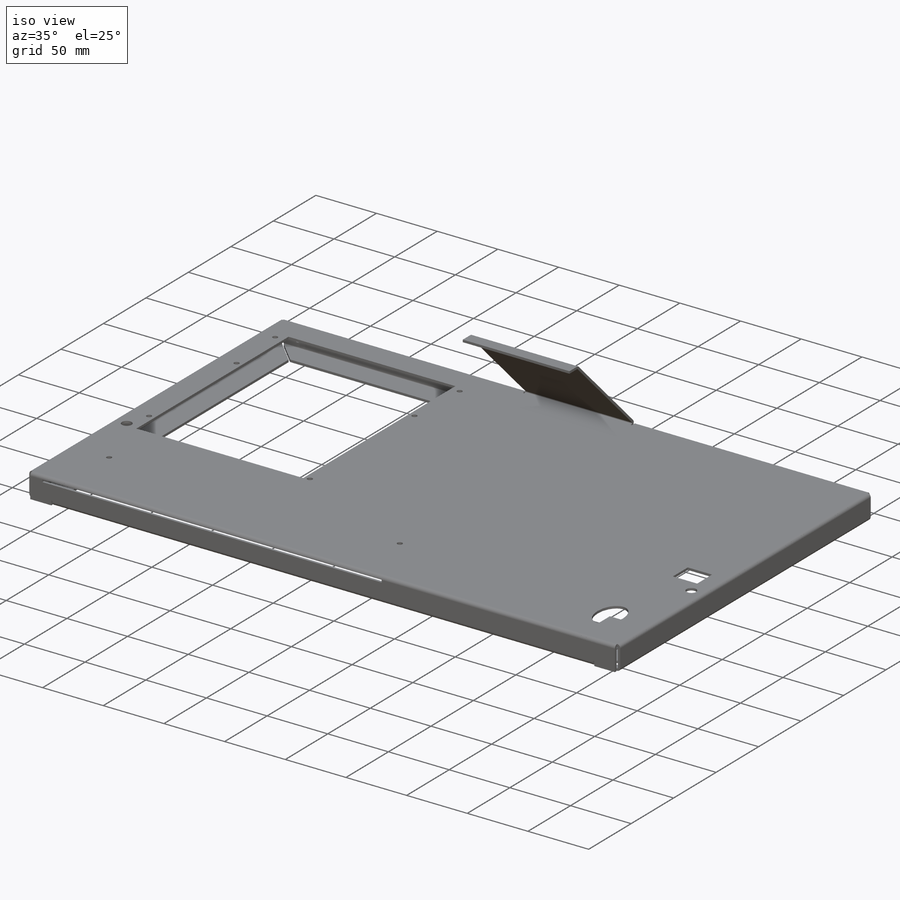
[diagram: iso view]
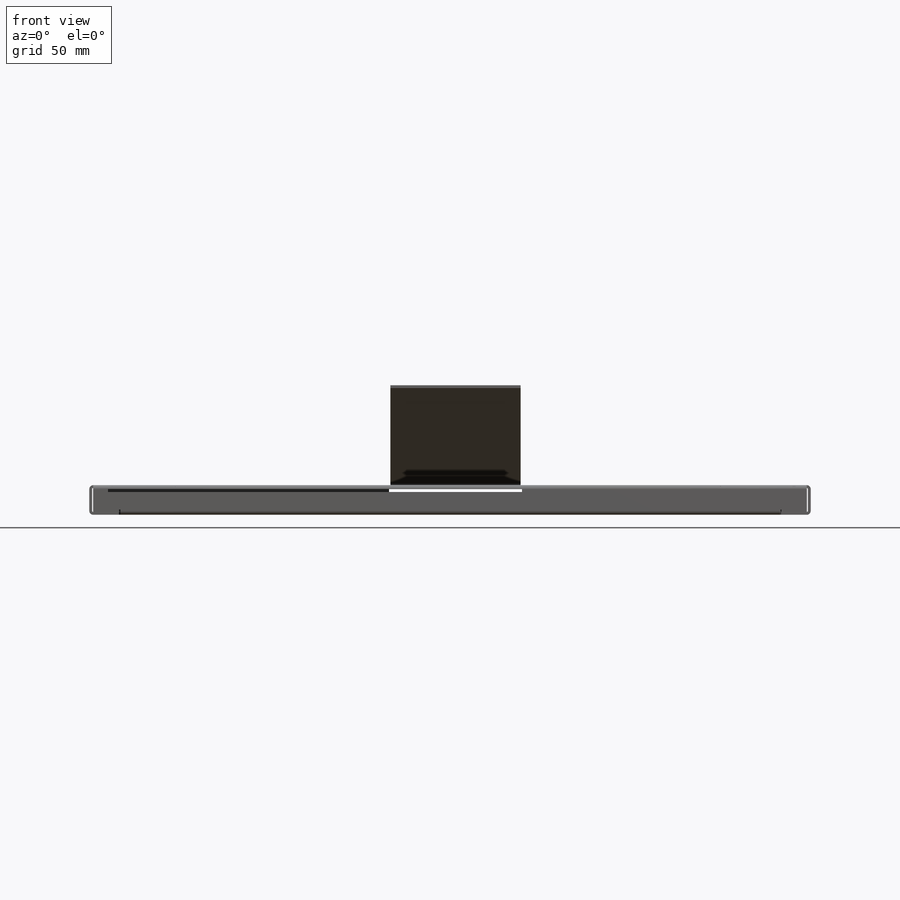
[diagram: front view]
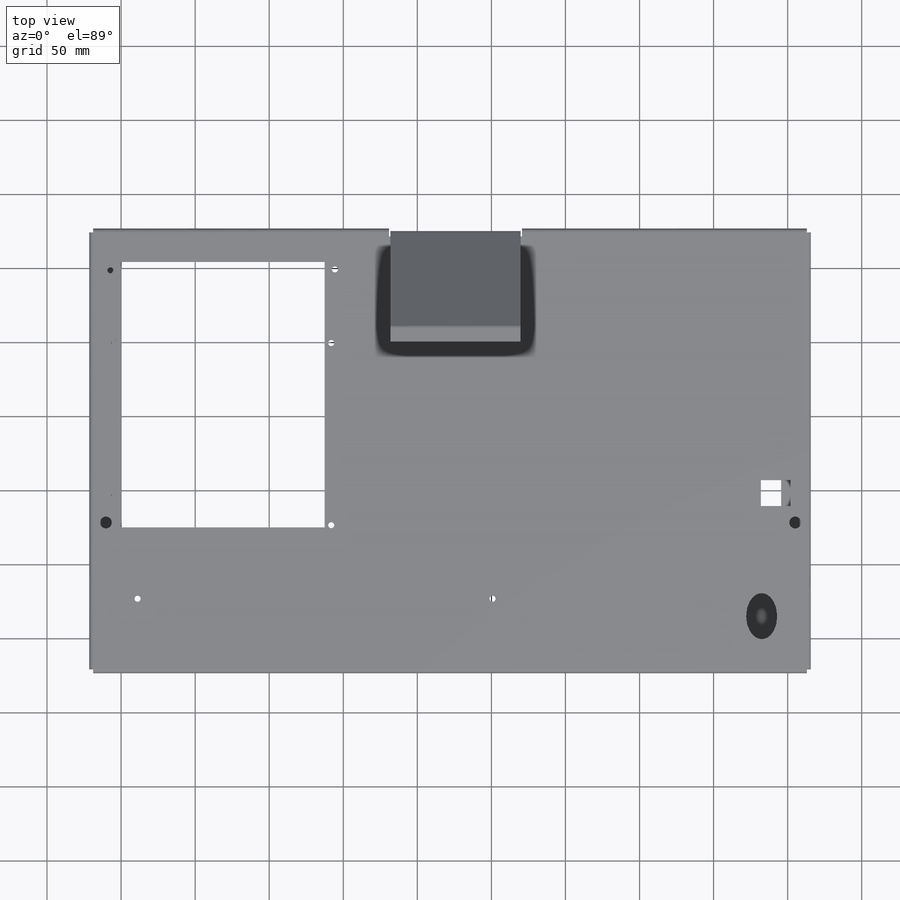
[diagram: top view]
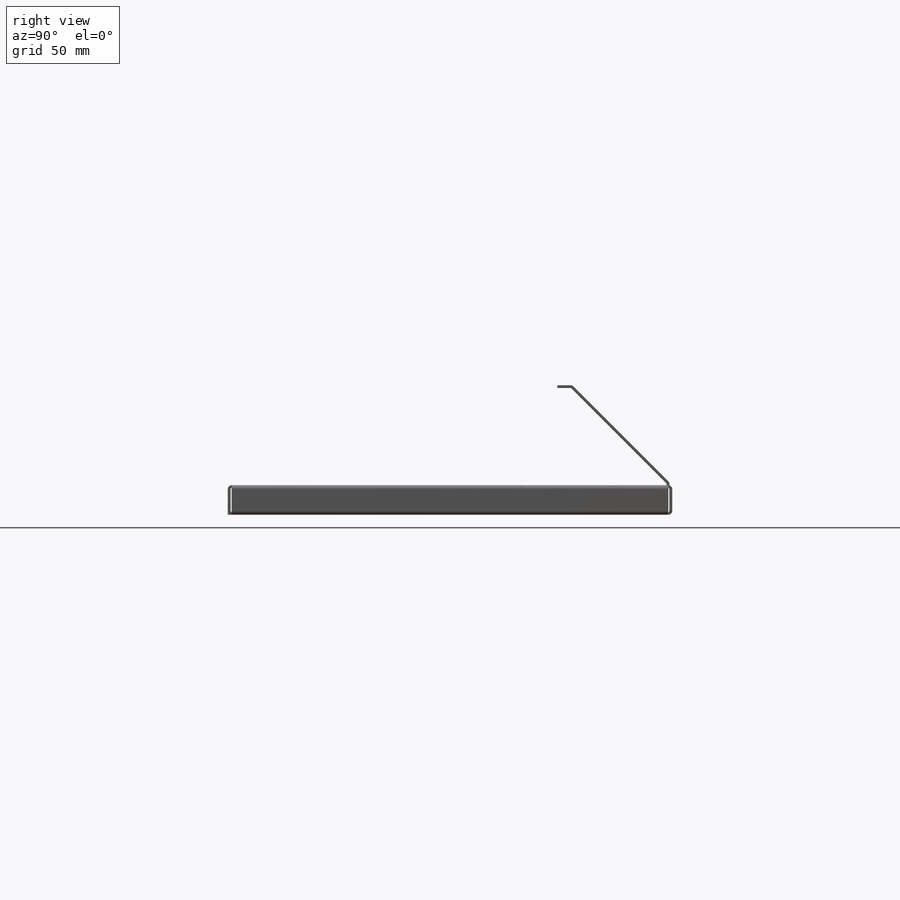
[diagram: right view]
SOLIDWORKS PART (.sldprt)
format: sldprt  version: not decoded by parser v0  size: 1,553,408 bytes
history: native  units: mm
features: sketch x61, sheet_metal_op x29, cut_extrude x11, material x1 + 17 further entries (+13 scaffold rows collapsed; 17 parser-record rows omitted)
feature tree (149):
  scaffold x13  (default folders/planes/origin — collapsed)
  material  "Material <not specified>"
  sketch  "Sketch1"  dims[c1.D1=300.0mm c1.D2=487.0mm c2.D1=1.27mm c2.D2=0.5 c2.D3=0.0mm c2.D6=500.0mm]
  sheet_metal_op  "Base-Flange1"
  sketch  "Sketch5"  dims[c1.D1=0.7366mm c1.D4=135.0deg c1.D5=1.0 c1.D8=~0.94869mm c1.D9=~0.94869mm c2.D1=0.7366mm c2.D2=500.0mm c2.D3=0.0mm c2.D6=10.0mm c2.D7=100.0mm c2.Edge-Flange2=0.0]
  sketch  "Sketch8"
  sheet_metal_op  "EdgeBend2"  Edge-Flange3=0
  sketch  "Sketch20"
  sketch  "Sketch21"
  sketch  "Sketch22"
  sketch  "Sketch23"
  sketch  "Sketch44"
  sheet_metal_op  "EdgeBend4"
  sheet_metal_op  "EdgeBend5"
  sheet_metal_op  "EdgeBend6"
  sheet_metal_op  "EdgeBend7"
  sheet_metal_op  "EdgeBend14"
  sketch  "Sketch45"  dims[D1=21.0mm D2=31.0mm D3=20.0mm D4=20.0mm]
  cut_extrude  "Cut-Extrude2"  Depth=10mm Edge-Flange4=0
  sketch  "Sketch56"
  sketch  "Sketch57"
  sketch  "Sketch58"
  sketch  "Sketch59"
  sheet_metal_op  "EdgeBend15"
  sheet_metal_op  "EdgeBend16"
  sheet_metal_op  "EdgeBend17"
  sheet_metal_op  "EdgeBend18"  Edge-Flange5=0
  sketch  "Sketch62"
  sheet_metal_op  "EdgeBend19"
  sketch  "Sketch63"  dims[D1=17.5mm D2=20.0mm D3=11.0mm D4=110.0mm]
  cut_extrude  "Cut-Extrude3"  Depth=10mm
  sketch  "Sketch64"  dims[D1=1.5mm 12=13.5mm D2=14.0mm D3=92.0mm D4=92.0mm D5=2.0mm D6=13.5mm D7=14.0mm]
  sketch  "Sketch68"  dims[D1=137.57mm D2=20.0mm]
  cut_extrude  "Cut-Extrude8"  Depth=20mm
  sketch  "Sketch69"  dims[c1.D1=~4.518431mm c1.D6=5.0mm c1.D3=4.08mm c1.D4=4.08mm c2.D1=7.0mm c2.D2=7.0mm c2.D3=5.0mm c2.D4=5.0mm c2.D5=5.0mm c2.D6=8.0mm c3.D5=5.0mm]
  cut_extrude  "Cut-Extrude9"  Depth=10mm
  sketch  "Sketch70"
  sketch  "Sketch71"  dims[D1=2.0mm D2=10.0mm D3=45.0mm]
  cut_extrude  "Cut-Extrude11"  Depth=10mm
  cut_extrude  "Cut-Extrude10"  Depth=10mm
  sketch  "Sketch72"  dims[D1=4.08mm D2=50.0mm D3=20.0mm D4=20.0mm]
  cut_extrude  "Cut-Extrude12"  Depth=10mm
  sketch  "Sketch73"  dims[D1=7.0mm]
  cut_extrude  "Cut-Extrude13"  Depth=15mm
  sketch  "Sketch74"  dims[D1=~3.047318mm]
  cut_extrude  "Cut-Extrude14"  Depth=10mm
  sketch  "Sketch75"  dims[D1=4.08mm]
  cut_extrude  "Cut-Extrude15"  Depth=10mm
  sketch  "Sketch76"  dims[D1=5.0mm]
  cut_extrude  "Cut-Extrude16"  Depth=10mm
  sketch  "Bend-Lines1"
  sketch  "Bounding-Box1"
  sheet_metal_op  "Sheet-Metal1"
  "Flat-Pattern1"
  sketch  "Bend-Lines2"
  sketch  "Bounding-Box2"
  parser-record x17  (decoder bookkeeping rows leaked as tree rows — omitted from the tree; the rows remain in map.json)
  sheet_metal_op  "Sheet-Metal5"
  "Flat-Pattern1"
  sketch  "Bend-Lines2"
  sketch  "Bounding-Box2"
  sheet_metal_op  "Sheet-Metal6"
  "Flat-Pattern1"
  sketch  "Bend-Lines2"
  sketch  "Bounding-Box2"
  sheet_metal_op  "Sheet-Metal7"
  "Flat-Pattern1"
  sketch  "Bend-Lines2"
  sketch  "Bounding-Box2"
  sheet_metal_op  "Sheet-Metal11"
  "Flat-Pattern1"
  sketch  "Bend-Lines2"
  sketch  "Bounding-Box2"
  sheet_metal_op  "Sheet-Metal12"
  "Flat-Pattern1"
  sketch  "Bend-Lines2"
  sketch  "Bounding-Box2"
  sheet_metal_op  "Sheet-Metal13"
  "Flat-Pattern1"
  sketch  "Bend-Lines2"
  sketch  "Bounding-Box2"
  sheet_metal_op  "Sheet-Metal14"
  "Flat-Pattern1"
  sketch  "Bend-Lines2"
  sketch  "Bounding-Box2"
  sheet_metal_op  "Sheet-Metal17"
  "Flat-Pattern1"
  sketch  "Bend-Lines2"
  sketch  "Bounding-Box2"
  sheet_metal_op  "Sheet-Metal18"
  "Flat-Pattern1"
  sketch  "Bend-Lines2"
  sketch  "Bounding-Box2"
  sheet_metal_op  "Sheet-Metal19"
  "Flat-Pattern1"
  sketch  "Bend-Lines2"
  sketch  "Bounding-Box2"
  sheet_metal_op  "Sheet-Metal20"
  "Flat-Pattern1"
  sketch  "Bend-Lines2"
  sketch  "Bounding-Box2"
  sheet_metal_op  "Sheet-Metal21"
  "Flat-Pattern1"
  sketch  "Bend-Lines2"
  sketch  "Bounding-Box2"
  sheet_metal_op  "Sheet-Metal22"
  "Flat-Pattern1"
  sketch  "Bend-Lines2"
  sketch  "Bounding-Box2"
  sheet_metal_op  "Sheet-Metal23"
  "Flat-Pattern1"
  sketch  "Bend-Lines2"
  sketch  "Bounding-Box2"
  sheet_metal_op  "Sheet-Metal24"
  "Flat-Pattern1"
  sketch  "Bend-Lines2"
  sketch  "Bounding-Box2"
  sheet_metal_op  "Sheet-Metal25"
  "Flat-Pattern1"
  sketch  "Bend-Lines2"
  sketch  "Bounding-Box2"
decode coverage: 26 of 101 modeling features carry decoded parameters; 17 rows unclassified (native names shown)
note: ~ marks probable driven/reference dimensions
note: suppression state not decoded; provenance and decode notes live in map.json
